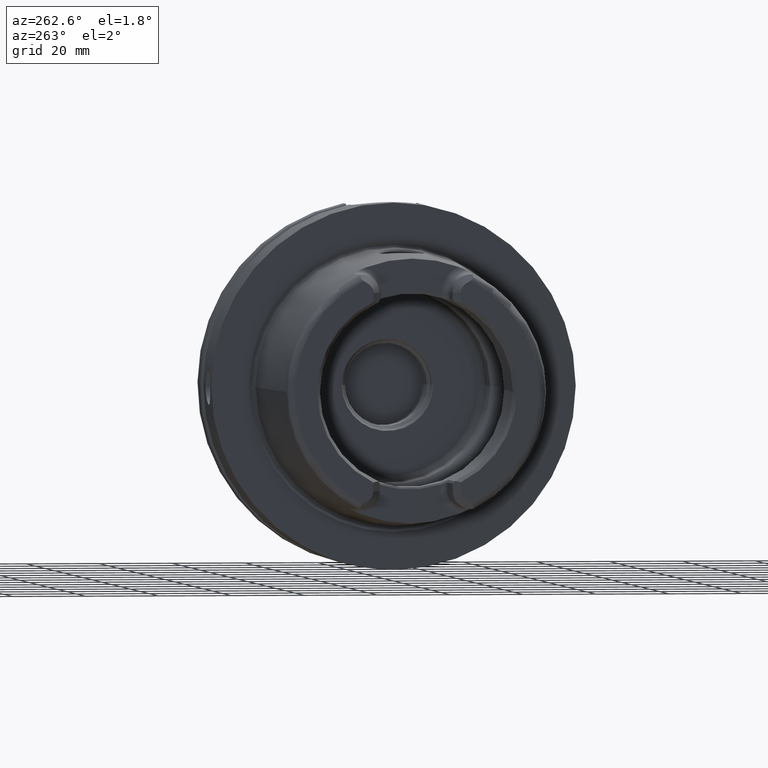
[diagram: clean part render]
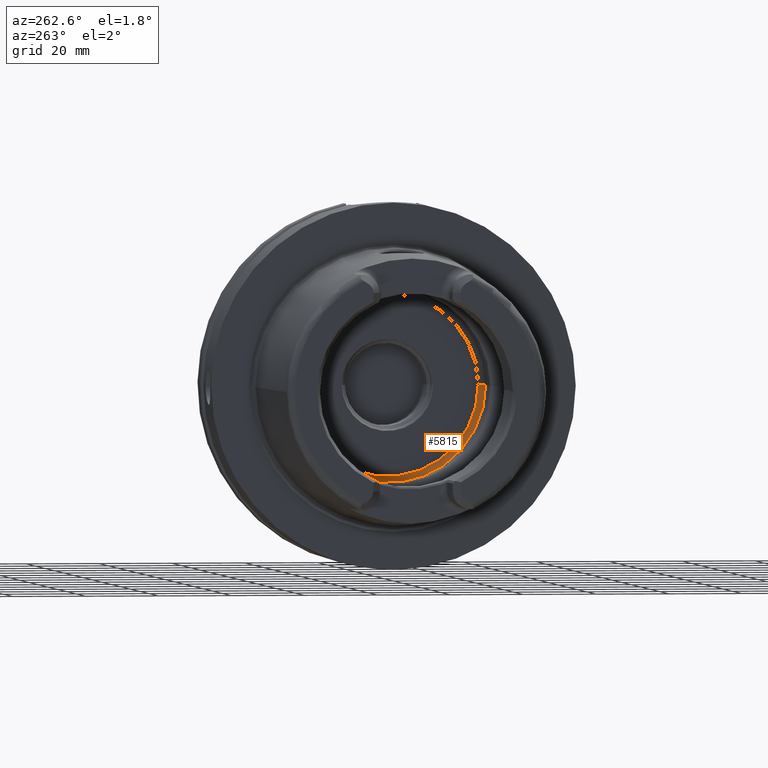
[diagram: same view with one face highlighted and labeled with its STEP entity id]
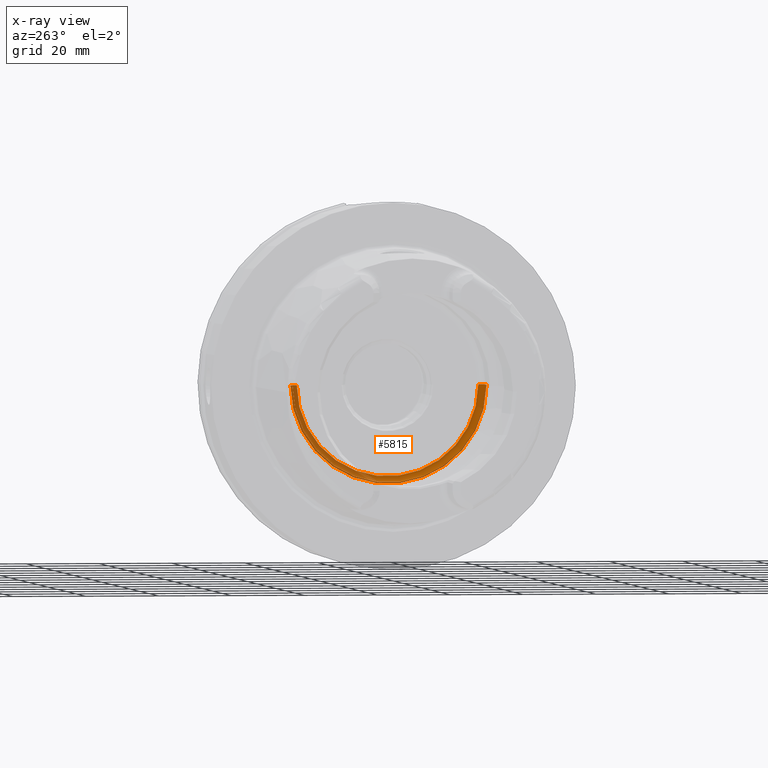
[diagram: x-ray of the same camera — body ghosted, the highlighted face saturated]
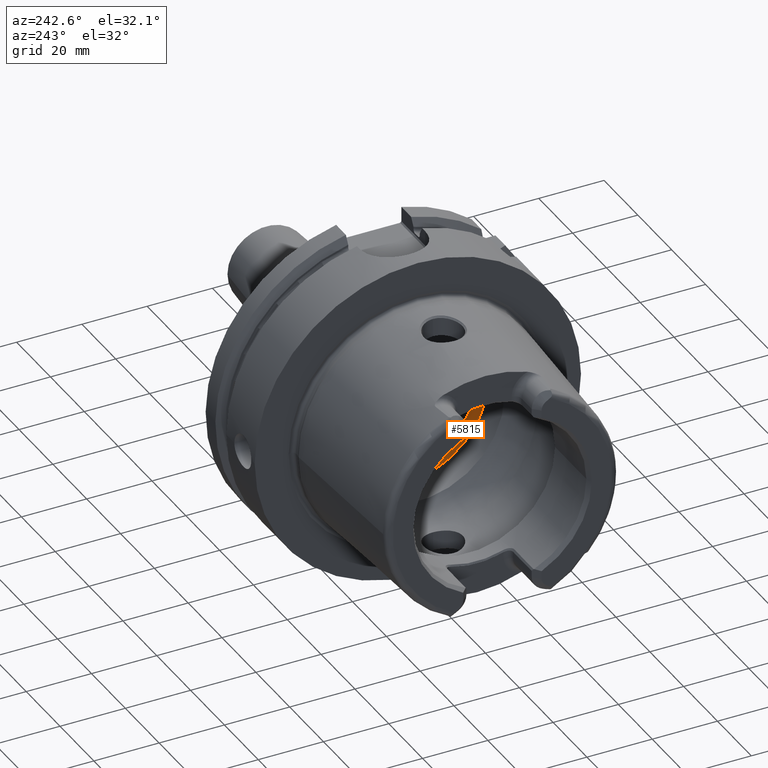
[diagram: same view with one face highlighted and labeled with its STEP entity id]
A machine part, auxiliary view. The second image highlights one B-rep face of the part: STEP entity #5815.
The next image is the same camera in x-ray: the body ghosted, the highlighted face saturated — about 41% of this face is hidden behind the body in this view.
A second angle (auxiliary view) of the same face is appended — the face is thin or edge-on in the first view.
In plain terms, the highlighted toroidal blend (fillet) surface has major radius 24.9 mm and minor (blend) radius 2 mm.
Its self-contained STEP definition (entity closure, byte-faithful):
#2246=CARTESIAN_POINT('',(9.3E0,0.E0,0.E0));
#2247=DIRECTION('',(-1.E0,0.E0,0.E0));
#2248=DIRECTION('',(0.E0,1.E0,0.E0));
#2249=AXIS2_PLACEMENT_3D('',#2246,#2247,#2248);
#2265=CARTESIAN_POINT('',(1.05E1,2.49E1,0.E0));
#2266=DIRECTION('',(0.E0,0.E0,1.E0));
#2267=DIRECTION('',(1.E0,0.E0,0.E0));
#2268=AXIS2_PLACEMENT_3D('',#2265,#2266,#2267);
#2270=CARTESIAN_POINT('',(1.25E1,0.E0,0.E0));
#2271=DIRECTION('',(-1.E0,0.E0,0.E0));
#2272=DIRECTION('',(0.E0,1.E0,0.E0));
#2273=AXIS2_PLACEMENT_3D('',#2270,#2271,#2272);
#2275=CARTESIAN_POINT('',(1.05E1,-2.49E1,0.E0));
#2276=DIRECTION('',(0.E0,0.E0,-1.E0));
#2277=DIRECTION('',(1.E0,0.E0,0.E0));
#2278=AXIS2_PLACEMENT_3D('',#2275,#2276,#2277);
#2725=CARTESIAN_POINT('',(1.25E1,2.49E1,0.E0));
#2726=CARTESIAN_POINT('',(9.3E0,2.65E1,0.E0));
#2727=VERTEX_POINT('',#2725);
#2728=VERTEX_POINT('',#2726);
#2729=CARTESIAN_POINT('',(1.25E1,-2.49E1,0.E0));
#2730=CARTESIAN_POINT('',(9.3E0,-2.65E1,0.E0));
#2731=VERTEX_POINT('',#2729);
#2732=VERTEX_POINT('',#2730);
#5803=CARTESIAN_POINT('',(1.05E1,0.E0,0.E0));
#5804=DIRECTION('',(1.E0,0.E0,0.E0));
#5805=DIRECTION('',(0.E0,-1.E0,0.E0));
#5806=AXIS2_PLACEMENT_3D('',#5803,#5804,#5805);
#5807=TOROIDAL_SURFACE('',#5806,2.49E1,2.E0);
#5808=ORIENTED_EDGE('',*,*,#5793,.F.);
#5810=ORIENTED_EDGE('',*,*,#5809,.T.);
#5811=ORIENTED_EDGE('',*,*,#5796,.T.);
#5812=ORIENTED_EDGE('',*,*,#5767,.F.);
#5813=EDGE_LOOP('',(#5808,#5810,#5811,#5812));
#5814=FACE_OUTER_BOUND('',#5813,.F.);
#5815=ADVANCED_FACE('',(#5814),#5807,.F.);
#2250=CIRCLE('',#2249,2.65E1);
#2269=CIRCLE('',#2268,2.E0);
#2274=CIRCLE('',#2273,2.49E1);
#2279=CIRCLE('',#2278,2.E0);
#5767=EDGE_CURVE('',#2728,#2732,#2250,.T.);
#5793=EDGE_CURVE('',#2727,#2728,#2269,.T.);
#5796=EDGE_CURVE('',#2731,#2732,#2279,.T.);
#5809=EDGE_CURVE('',#2727,#2731,#2274,.T.);